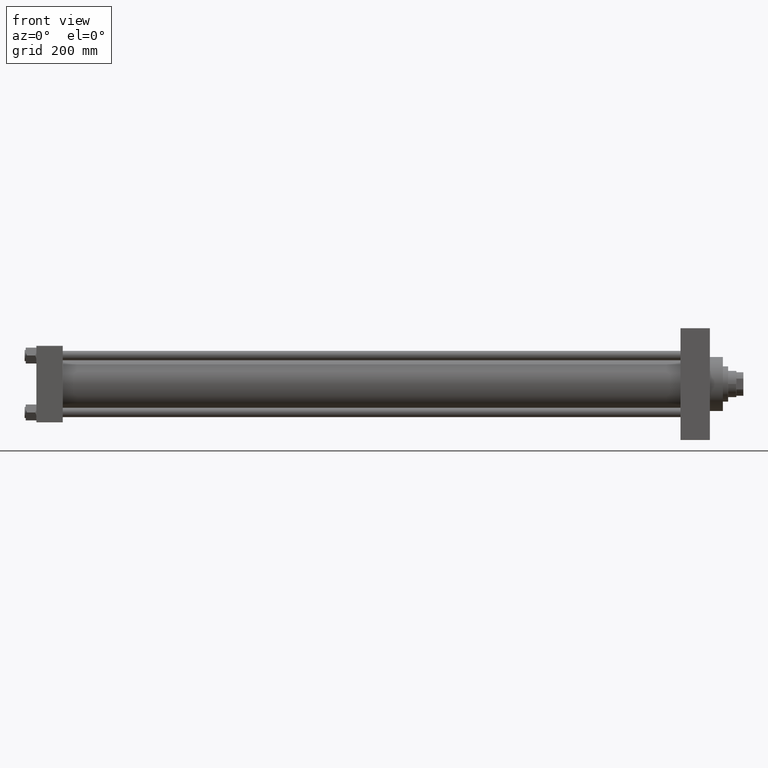
[diagram: clean part render]
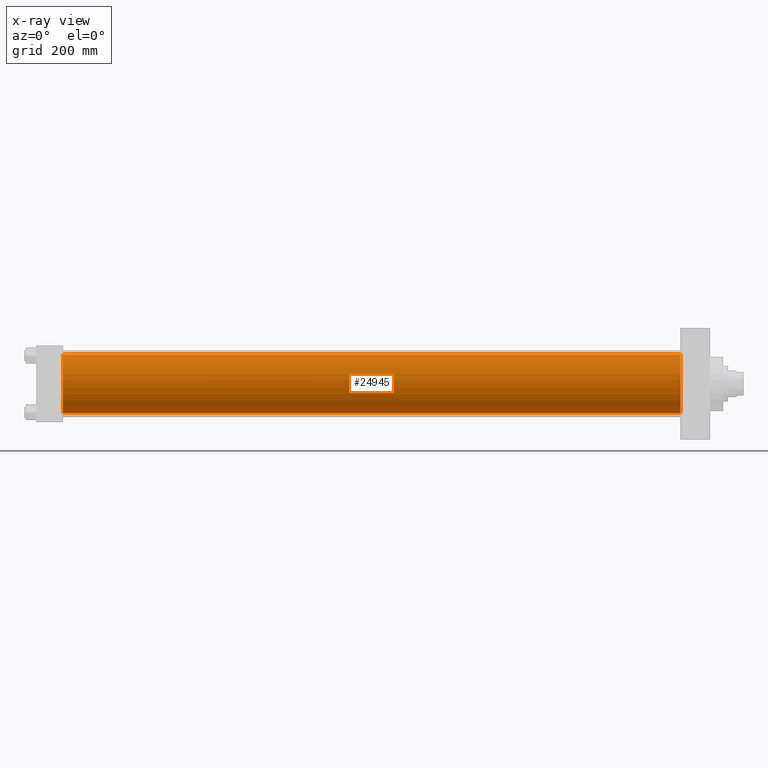
[diagram: x-ray — body ghosted, one internal face saturated and labeled with its STEP entity id]
A machine part, front view, then the same camera in x-ray: the body is ghosted and one INTERNAL B-rep face — a face not visible from any outside direction — is saturated and labeled: STEP entity #24945.
In plain terms, the highlighted cylindrical surface (edge-blend (fillet) strip) has radius 50 mm, axis along (-1, -0, -0).
Its self-contained STEP definition (entity closure, byte-faithful):
#1526 = LINE ( 'NONE', #9452, #12845 ) ;
#1958 = CIRCLE ( 'NONE', #19703, 50.00000000000000000 ) ;
#2184 = ORIENTED_EDGE ( 'NONE', *, *, #13191, .F. ) ;
#2412 = ORIENTED_EDGE ( 'NONE', *, *, #4154, .T. ) ;
#3990 = DIRECTION ( 'NONE',  ( 0.000000000000000000, 0.000000000000000000, -1.000000000000000000 ) ) ;
#4154 = EDGE_CURVE ( 'NONE', #21311, #4849, #1958, .T. ) ;
#4578 = VECTOR ( 'NONE', #44878, 1000.000000000000000 ) ;
#4849 = VERTEX_POINT ( 'NONE', #19912 ) ;
#5830 = EDGE_CURVE ( 'NONE', #4849, #24563, #1526, .T. ) ;
#5837 = DIRECTION ( 'NONE',  ( -1.000000000000000000, -0.000000000000000000, -0.000000000000000000 ) ) ;
#6948 = DIRECTION ( 'NONE',  ( 0.000000000000000000, 0.000000000000000000, 1.000000000000000000 ) ) ;
#9452 = CARTESIAN_POINT ( 'NONE',  ( 1095.999999999999773, 3.521148781771555838E-15, -50.00000000000000000 ) ) ;
#9848 = DIRECTION ( 'NONE',  ( 0.000000000000000000, 0.000000000000000000, -1.000000000000000000 ) ) ;
#10587 = AXIS2_PLACEMENT_3D ( 'NONE', #19183, #37506, #3990 ) ;
#12057 = CARTESIAN_POINT ( 'NONE',  ( 1095.999999999999773, -2.602085213965210642E-15, 50.00000000000000000 ) ) ;
#12604 = CARTESIAN_POINT ( 'NONE',  ( 45.00000000000000000, -2.602085213965210642E-15, 50.00000000000000000 ) ) ;
#12845 = VECTOR ( 'NONE', #5837, 1000.000000000000000 ) ;
#13191 = EDGE_CURVE ( 'NONE', #35465, #24563, #32173, .T. ) ;
#17814 = DIRECTION ( 'NONE',  ( -1.000000000000000000, -0.000000000000000000, -0.000000000000000000 ) ) ;
#19183 = CARTESIAN_POINT ( 'NONE',  ( 45.00000000000000000, -2.602085213965210642E-15, 0.000000000000000000 ) ) ;
#19703 = AXIS2_PLACEMENT_3D ( 'NONE', #28197, #42878, #9848 ) ;
#19912 = CARTESIAN_POINT ( 'NONE',  ( 1095.999999999999773, 3.521148781771555838E-15, -50.00000000000000000 ) ) ;
#21311 = VERTEX_POINT ( 'NONE', #12057 ) ;
#24219 = AXIS2_PLACEMENT_3D ( 'NONE', #39024, #17814, #6948 ) ;
#24563 = VERTEX_POINT ( 'NONE', #25942 ) ;
#24945 = ADVANCED_FACE ( 'NONE', ( #27956 ), #28190, .F. ) ;
#25942 = CARTESIAN_POINT ( 'NONE',  ( 45.00000000000000000, 3.521148781771555838E-15, -50.00000000000000000 ) ) ;
#27956 = FACE_OUTER_BOUND ( 'NONE', #29015, .T. ) ;
#28190 = CYLINDRICAL_SURFACE ( 'NONE', #24219, 50.00000000000000000 ) ;
#28197 = CARTESIAN_POINT ( 'NONE',  ( 1095.999999999999773, -2.602085213965210642E-15, 0.000000000000000000 ) ) ;
#29015 = EDGE_LOOP ( 'NONE', ( #2412, #45778, #2184, #45385 ) ) ;
#32173 = CIRCLE ( 'NONE', #10587, 50.00000000000000000 ) ;
#34037 = CARTESIAN_POINT ( 'NONE',  ( 1095.999999999999773, -2.602085213965210642E-15, 50.00000000000000000 ) ) ;
#35465 = VERTEX_POINT ( 'NONE', #12604 ) ;
#37506 = DIRECTION ( 'NONE',  ( 1.000000000000000000, 0.000000000000000000, 0.000000000000000000 ) ) ;
#37906 = LINE ( 'NONE', #34037, #4578 ) ;
#39024 = CARTESIAN_POINT ( 'NONE',  ( 1095.999999999999773, -2.602085213965210642E-15, 0.000000000000000000 ) ) ;
#42878 = DIRECTION ( 'NONE',  ( 1.000000000000000000, 0.000000000000000000, 0.000000000000000000 ) ) ;
#44265 = EDGE_CURVE ( 'NONE', #21311, #35465, #37906, .T. ) ;
#44878 = DIRECTION ( 'NONE',  ( -1.000000000000000000, -0.000000000000000000, -0.000000000000000000 ) ) ;
#45385 = ORIENTED_EDGE ( 'NONE', *, *, #44265, .F. ) ;
#45778 = ORIENTED_EDGE ( 'NONE', *, *, #5830, .T. ) ;